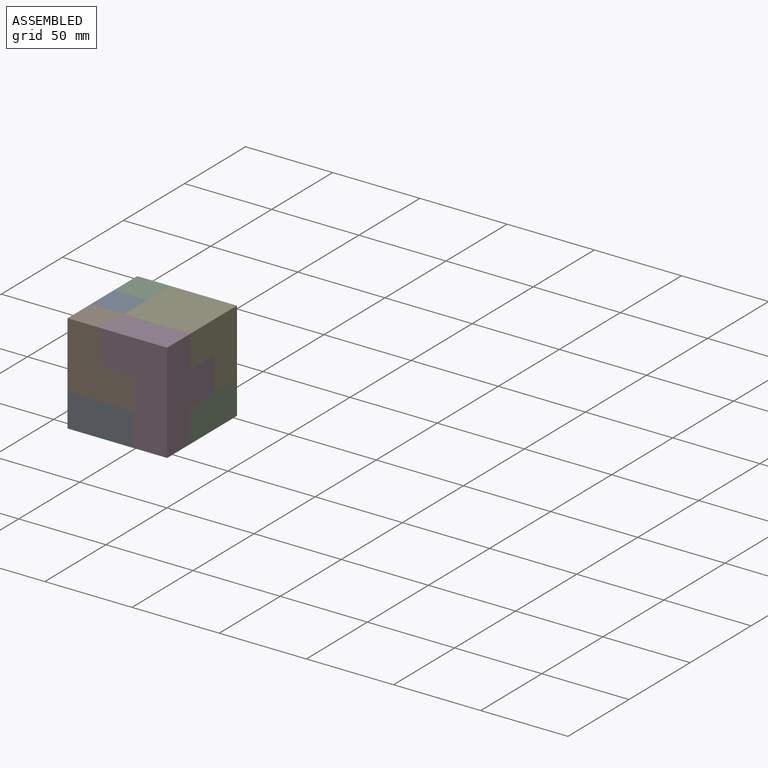
[diagram: assembled view]
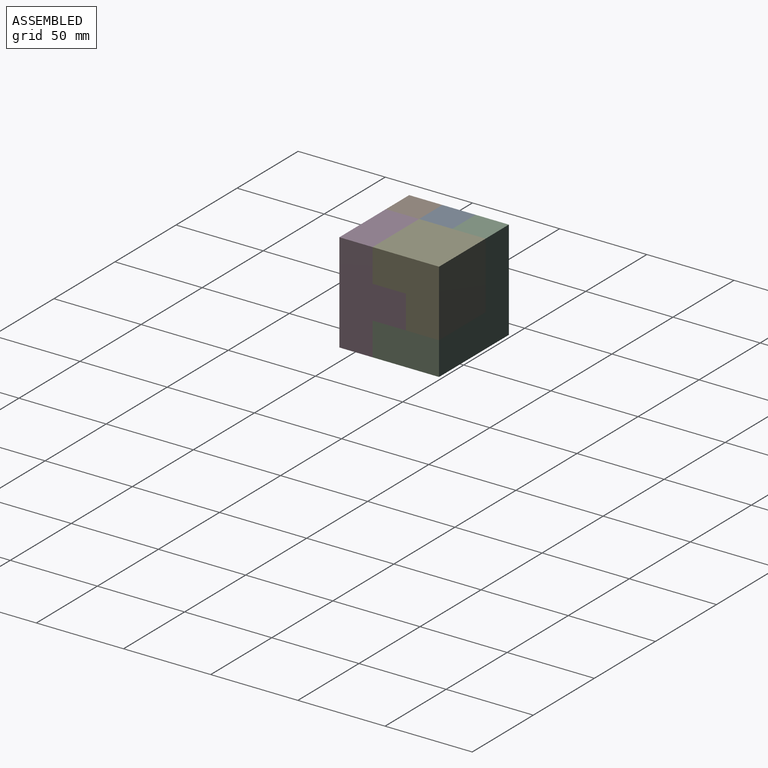
[diagram: assembled view, second angle]
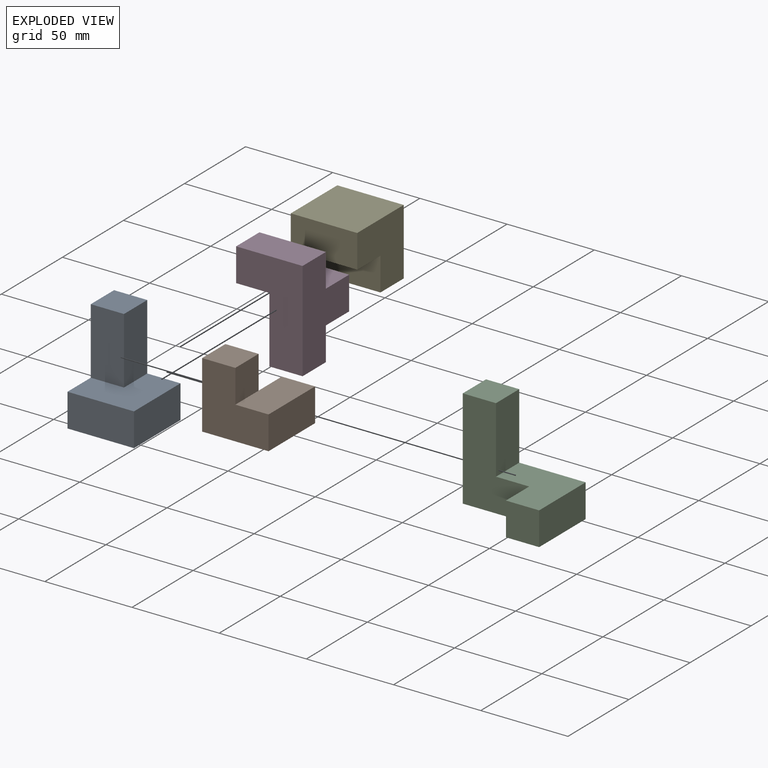
[diagram: exploded view]
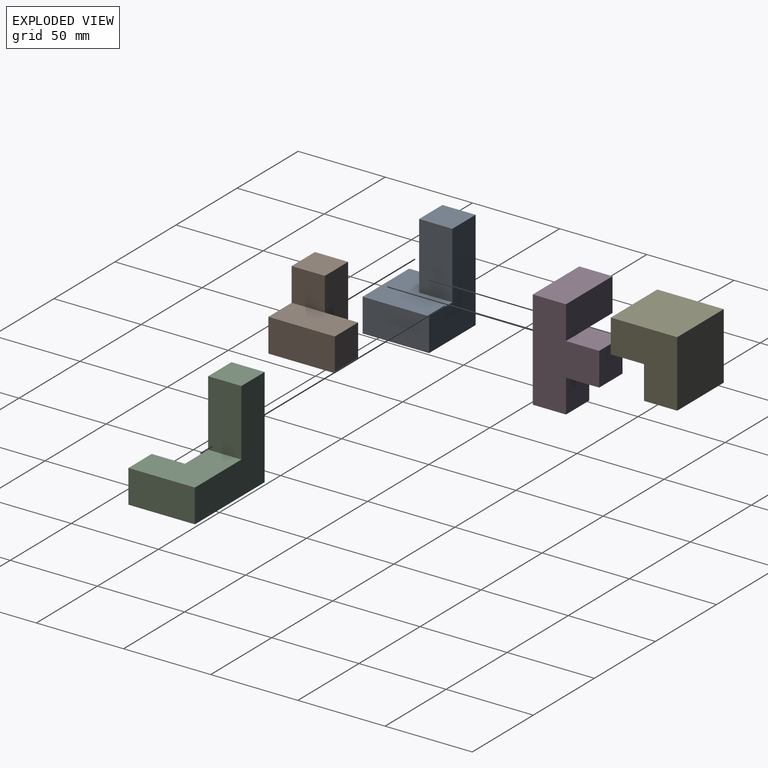
[diagram: exploded view, second angle]
ASSEMBLY  parts=5 mates=4
PART A: 9 faces, bbox 38.1x38.1x57.2 mm
  f0: plane 38.1x38.1mm, normal (0,0,1), area 1088.7mm2, adj f1,f2,f3,f4,f6,f7
  f1: plane 57.15x38.1mm, normal (0,1,0), area 1451.6mm2, adj f0,f2,f4,f5,f7,f8
  f2: plane 38.1x19.05mm, normal (-1,0,0), area 725.8mm2, adj f0,f1,f3,f5
  f3: plane 38.1x19.05mm, normal (0,-1,0), area 725.8mm2, adj f0,f2,f4,f5
  f4: plane 57.15x38.1mm, normal (1,0,0), area 1451.6mm2, adj f0,f1,f3,f5,f6,f8
  f5: plane 38.1x38.1mm, normal (0,0,-1), area 1451.6mm2, adj f1,f2,f3,f4
  f6: plane 38.1x19.05mm, normal (0,-1,0), area 725.8mm2, adj f0,f4,f7,f8
  f7: plane 38.1x19.05mm, normal (-1,0,0), area 725.8mm2, adj f0,f1,f6,f8
  f8: plane 19.05x19.05mm, normal (0,0,1), area 362.9mm2, adj f1,f4,f6,f7
PART B: 10 faces, bbox 38.1x38.1x38.1 mm
  f0: plane 38.1x19.05mm, normal (-1,0,0), area 725.8mm2, adj f1,f5,f6,f7
  f1: plane 19.05x19.05mm, normal (0,-1,0), area 362.9mm2, adj f0,f2,f6,f7
  f2: plane 19.05x19.05mm, normal (1,0,0), area 362.9mm2, adj f1,f3,f6,f7
  f3: plane 38.1x19.05mm, normal (0,-1,0), area 725.8mm2, adj f2,f4,f7,f8,f9
  f4: plane 38.1x19.05mm, normal (1,0,0), area 725.8mm2, adj f3,f5,f7,f9
  f5: plane 38.1x38.1mm, normal (0,1,0), area 1088.7mm2, adj f0,f4,f6,f7,f8,f9
  f6: plane 38.1x19.05mm, normal (0,0,1), area 725.8mm2, adj f0,f1,f2,f5,f8
  f7: plane 38.1x38.1mm, normal (0,0,-1), area 1088.7mm2, adj f0,f1,f2,f3,f4,f5
  f8: plane 19.05x19.05mm, normal (-1,0,0), area 362.9mm2, adj f3,f5,f6,f9
  f9: plane 19.05x19.05mm, normal (0,0,1), area 362.9mm2, adj f3,f4,f5,f8
PART C: 10 faces, bbox 57.2x38.1x57.2 mm
  f0: plane 38.1x38.1mm, normal (0,0,1), area 1088.7mm2, adj f1,f5,f6,f7,f8,f9
  f1: plane 38.1x19.05mm, normal (1,0,0), area 725.8mm2, adj f0,f2,f6,f7
  f2: plane 19.05x19.05mm, normal (0,0,1), area 362.9mm2, adj f1,f3,f6,f7
  f3: plane 57.15x19.05mm, normal (-1,0,0), area 1088.7mm2, adj f2,f4,f6,f7
  f4: plane 57.15x38.1mm, normal (0,0,-1), area 1451.6mm2, adj f3,f5,f6,f7,f8,f9
  f5: plane 38.1x19.05mm, normal (1,0,0), area 725.8mm2, adj f0,f4,f7,f9
  f6: plane 57.15x38.1mm, normal (0,-1,0), area 1451.6mm2, adj f0,f1,f2,f3,f4,f8
  f7: plane 57.15x57.15mm, normal (0,1,0), area 1814.5mm2, adj f0,f1,f2,f3,f4,f5
  f8: plane 19.05x19.05mm, normal (-1,0,0), area 362.9mm2, adj f0,f4,f6,f9
  f9: plane 19.05x19.05mm, normal (0,-1,0), area 362.9mm2, adj f0,f4,f5,f8
PART D: 12 faces, bbox 38.1x38.1x57.2 mm
  f0: plane 38.1x19.05mm, normal (0,1,0), area 725.8mm2, adj f1,f2,f3,f6,f9
  f1: plane 38.1x19.05mm, normal (0,0,1), area 725.8mm2, adj f0,f2,f6,f7
  f2: plane 19.05x19.05mm, normal (-1,0,0), area 362.9mm2, adj f0,f1,f3,f7
  f3: plane 19.05x19.05mm, normal (0,0,-1), area 362.9mm2, adj f0,f2,f4,f7
  f4: plane 38.1x38.1mm, normal (-1,0,0), area 1088.7mm2, adj f3,f5,f7,f8,f9,f10,f11
  f5: plane 19.05x19.05mm, normal (0,0,-1), area 362.9mm2, adj f4,f6,f7,f8
  f6: plane 57.15x38.1mm, normal (1,0,0), area 1451.6mm2, adj f0,f1,f5,f7,f8,f9,f10,f11
  f7: plane 57.15x38.1mm, normal (0,-1,0), area 1451.6mm2, adj f1,f2,f3,f4,f5,f6
  f8: plane 19.05x19.05mm, normal (0,1,0), area 362.9mm2, adj f4,f5,f6,f10
  f9: plane 19.05x19.05mm, normal (0,0,1), area 362.9mm2, adj f0,f4,f6,f11
  f10: plane 19.05x19.05mm, normal (0,0,-1), area 362.9mm2, adj f4,f6,f8,f11
  f11: plane 19.05x19.05mm, normal (0,1,0), area 362.9mm2, adj f4,f6,f9,f10
PART E: 8 faces, bbox 38.1x38.1x38.1 mm
  f0: plane 38.1x19.05mm, normal (-1,0,0), area 725.8mm2, adj f1,f5,f6,f7
  f1: plane 38.1x19.05mm, normal (0,0,1), area 725.8mm2, adj f0,f2,f6,f7
  f2: plane 38.1x19.05mm, normal (-1,0,0), area 725.8mm2, adj f1,f3,f6,f7
  f3: plane 38.1x38.1mm, normal (0,0,-1), area 1451.6mm2, adj f2,f4,f6,f7
  f4: plane 38.1x38.1mm, normal (1,0,0), area 1451.6mm2, adj f3,f5,f6,f7
  f5: plane 38.1x19.05mm, normal (0,0,1), area 725.8mm2, adj f0,f4,f6,f7
  f6: plane 38.1x38.1mm, normal (0,-1,0), area 1088.7mm2, adj f0,f1,f2,f3,f4,f5
  f7: plane 38.1x38.1mm, normal (0,1,0), area 1088.7mm2, adj f0,f1,f2,f3,f4,f5
PLACE A rot(axis=(0,0,1),90deg) t=(-14.27,-37.95,-6.56)mm
PLACE B rot(axis=(0,0,1),180deg) t=(-23.63,-28.53,12.49)mm
PLACE C at identity
PLACE D t=(14.56,-38.1,4.51)mm
PLACE E rot(axis=(0.58,-0.58,0.58),120deg) t=(-17.96,-19.05,38.23)mm
MATE fastened B.f4 <-> A.f1  axis (-1,0,0) through (-37.01,-57.15,12.49)mm
MATE fastened D.f7 <-> B.f5  axis (0,-1,0) through (-17.96,-57.15,41.06)mm
MATE fastened A.f1 <-> C.f3  axis (-1,0,0) through (-37.01,-19.05,50.59)mm
MATE fastened E.f3 <-> C.f7  axis (0,1,0) through (1.09,0,12.49)mm
